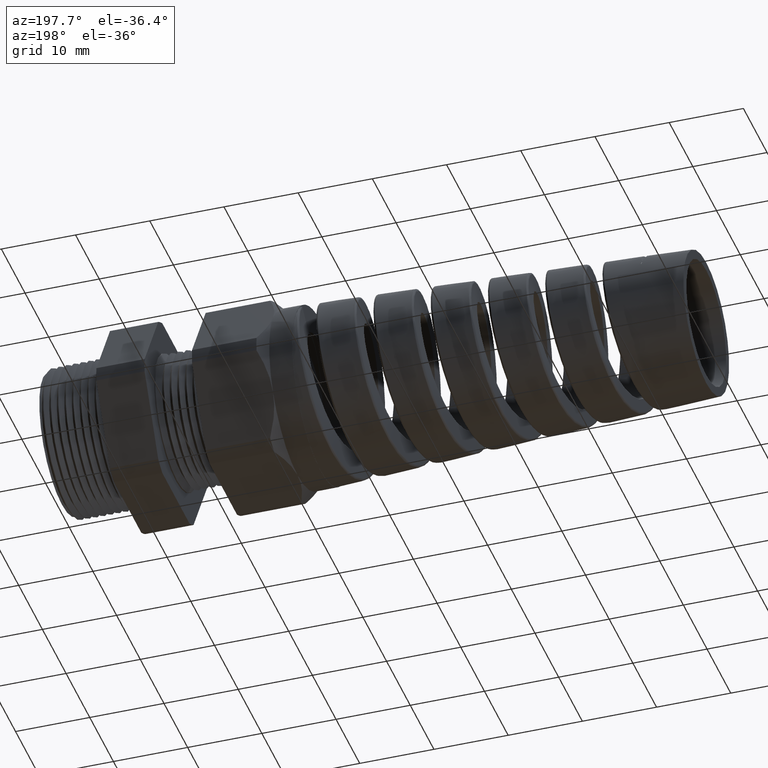
[diagram: clean part render]
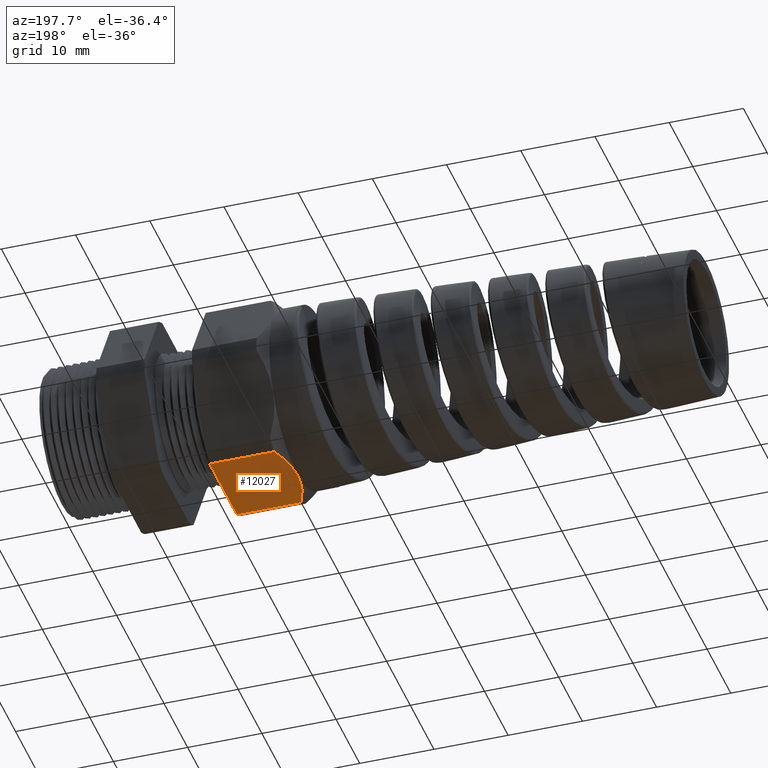
[diagram: same view with one face highlighted and labeled with its STEP entity id]
A machine part, auxiliary view. The second image highlights one B-rep face of the part: STEP entity #12027.
In plain terms, the highlighted planar face has unit normal (0, 0, -1).
Its self-contained STEP definition (entity closure, byte-faithful):
#697 = VERTEX_POINT ( 'NONE', #4408 ) ;
#4408 = CARTESIAN_POINT ( 'NONE',  ( -1.211259842519685200, 0.0000000000000000000, -0.4700000000000002000 ) ) ;
#11305 = CARTESIAN_POINT ( 'NONE',  ( -1.159559842519685100, -0.2264307620443828100, -0.4700000000000002000 ) ) ;
#11306 = CARTESIAN_POINT ( 'NONE',  ( -0.8175590551181102200, -0.2264307620443828100, -0.4700000000000002000 ) ) ;
#11312 = DIRECTION ( 'NONE',  ( -1.000000000000000000, 0.0000000000000000000, 0.0000000000000000000 ) ) ;
#11313 = VECTOR ( 'NONE', #11312, 39.37007874015748100 ) ;
#11314 = CARTESIAN_POINT ( 'NONE',  ( 0.04000000000000011900, -0.2264307620443828100, -0.4700000000000002000 ) ) ;
#11315 = LINE ( 'NONE', #11314, #11313 ) ;
#11338 = DIRECTION ( 'NONE',  ( -1.000000000000000000, 0.0000000000000000000, 0.0000000000000000000 ) ) ;
#11339 = VECTOR ( 'NONE', #11338, 39.37007874015748100 ) ;
#11340 = CARTESIAN_POINT ( 'NONE',  ( 0.04000000000000011900, 0.2264307620443829200, -0.4700000000000000800 ) ) ;
#11341 = LINE ( 'NONE', #11340, #11339 ) ;
#11342 = CARTESIAN_POINT ( 'NONE',  ( -1.159559842519685100, 0.2264307620443829200, -0.4700000000000000800 ) ) ;
#11349 = DIRECTION ( 'NONE',  ( 0.0000000000000000000, 1.000000000000000000, 0.0000000000000000000 ) ) ;
#11350 = VECTOR ( 'NONE', #11349, 39.37007874015748100 ) ;
#11351 = CARTESIAN_POINT ( 'NONE',  ( -0.8175590551181102200, 0.3600000000000000400, -0.4700000000000002000 ) ) ;
#11352 = LINE ( 'NONE', #11351, #11350 ) ;
#11353 = CARTESIAN_POINT ( 'NONE',  ( -0.8175590551181102200, 0.2264307620443829200, -0.4700000000000000800 ) ) ;
#11372 = FACE_OUTER_BOUND ( 'NONE', #12021, .T. ) ;
#11374 = CARTESIAN_POINT ( 'NONE',  ( -1.159559842519685100, 0.2264307620443829200, -0.4700000000000000800 ) ) ;
#11375 = CARTESIAN_POINT ( 'NONE',  ( -1.167296572301459000, 0.2086052162099334400, -0.4700000000000002500 ) ) ;
#11376 = CARTESIAN_POINT ( 'NONE',  ( -1.174470665945852100, 0.1903621927138388300, -0.4700000000000003100 ) ) ;
#11377 = CARTESIAN_POINT ( 'NONE',  ( -1.187188844236638700, 0.1533252955870066700, -0.4700000000000003100 ) ) ;
#11378 = CARTESIAN_POINT ( 'NONE',  ( -1.192698125713231200, 0.1346420459264778300, -0.4700000000000003600 ) ) ;
#11379 = CARTESIAN_POINT ( 'NONE',  ( -1.201727064410992500, 0.09688970369981476900, -0.4700000000000002000 ) ) ;
#11380 = CARTESIAN_POINT ( 'NONE',  ( -1.205245541906994700, 0.07782038235249984200, -0.4700000000000002000 ) ) ;
#11381 = CARTESIAN_POINT ( 'NONE',  ( -1.210013082727666700, 0.03924163778662363000, -0.4700000000000002000 ) ) ;
#11382 = CARTESIAN_POINT ( 'NONE',  ( -1.211259842519685000, 0.01964242875915820500, -0.4700000000000002500 ) ) ;
#11383 = CARTESIAN_POINT ( 'NONE',  ( -1.211259842519685200, 0.0000000000000000000, -0.4700000000000002000 ) ) ;
#11384 = AXIS2_PLACEMENT_3D ( 'NONE', #11424, #11423, #11422 ) ;
#11386 = B_SPLINE_CURVE_WITH_KNOTS ( 'NONE', 3,
 ( #11383, #11382, #11381, #11380, #11379, #11378, #11377, #11376, #11375, #11374 ),
 .UNSPECIFIED., .F., .F.,
 ( 4, 2, 2, 2, 4 ),
 ( 0.01398828679202868300, 0.01545854684696776300, 0.01692880690190684500, 0.01839906695684592400, 0.01986932701178500300 ),
 .UNSPECIFIED. ) ;
#11387 = CARTESIAN_POINT ( 'NONE',  ( -1.211259842519685200, 0.0000000000000000000, -0.4700000000000002000 ) ) ;
#11388 = CARTESIAN_POINT ( 'NONE',  ( -1.211259842519685200, -0.03934296915062162500, -0.4700000000000003600 ) ) ;
#11389 = CARTESIAN_POINT ( 'NONE',  ( -1.206274661164799000, -0.07783554612607065900, -0.4700000000000002500 ) ) ;
#11390 = CARTESIAN_POINT ( 'NONE',  ( -1.192727451629499200, -0.1345390626635391600, -0.4700000000000003100 ) ) ;
#11391 = CARTESIAN_POINT ( 'NONE',  ( -1.187208415577702100, -0.1532690879941739900, -0.4700000000000002000 ) ) ;
#11392 = CARTESIAN_POINT ( 'NONE',  ( -1.174445429989154000, -0.1904348960138961500, -0.4700000000000002000 ) ) ;
#11393 = CARTESIAN_POINT ( 'NONE',  ( -1.167296722718981700, -0.2086048696456204200, -0.4700000000000002500 ) ) ;
#11394 = CARTESIAN_POINT ( 'NONE',  ( -1.159559842519685100, -0.2264307620443828100, -0.4700000000000002000 ) ) ;
#11396 = B_SPLINE_CURVE_WITH_KNOTS ( 'NONE', 3,
 ( #11394, #11393, #11392, #11391, #11390, #11389, #11388, #11387 ),
 .UNSPECIFIED., .F., .F.,
 ( 4, 2, 2, 4 ),
 ( 0.008098547117357335000, 0.009570982036025172900, 0.01104341695469300900, 0.01398828679202868300 ),
 .UNSPECIFIED. ) ;
#11422 = DIRECTION ( 'NONE',  ( -1.000000000000000000, 0.0000000000000000000, 0.0000000000000000000 ) ) ;
#11423 = DIRECTION ( 'NONE',  ( 0.0000000000000000000, 0.0000000000000000000, -1.000000000000000000 ) ) ;
#11424 = CARTESIAN_POINT ( 'NONE',  ( 0.04000000000000011900, 0.2264307620443828100, -0.4700000000000002000 ) ) ;
#11432 = PLANE ( 'NONE',  #11384 ) ;
#11996 = EDGE_CURVE ( 'NONE', #11999, #12001, #11315, .T. ) ;
#11999 = VERTEX_POINT ( 'NONE', #11306 ) ;
#12001 = VERTEX_POINT ( 'NONE', #11305 ) ;
#12011 = VERTEX_POINT ( 'NONE', #11353 ) ;
#12012 = ORIENTED_EDGE ( 'NONE', *, *, #12013, .F. ) ;
#12013 = EDGE_CURVE ( 'NONE', #11999, #12011, #11352, .T. ) ;
#12015 = VERTEX_POINT ( 'NONE', #11342 ) ;
#12016 = ORIENTED_EDGE ( 'NONE', *, *, #12017, .F. ) ;
#12017 = EDGE_CURVE ( 'NONE', #12011, #12015, #11341, .T. ) ;
#12018 = ORIENTED_EDGE ( 'NONE', *, *, #11996, .T. ) ;
#12019 = ORIENTED_EDGE ( 'NONE', *, *, #12022, .T. ) ;
#12020 = ORIENTED_EDGE ( 'NONE', *, *, #12023, .T. ) ;
#12021 = EDGE_LOOP ( 'NONE', ( #12018, #12019, #12020, #12016, #12012 ) ) ;
#12022 = EDGE_CURVE ( 'NONE', #12001, #697, #11396, .T. ) ;
#12023 = EDGE_CURVE ( 'NONE', #697, #12015, #11386, .T. ) ;
#12027 = ADVANCED_FACE ( 'NONE', ( #11372 ), #11432, .T. ) ;